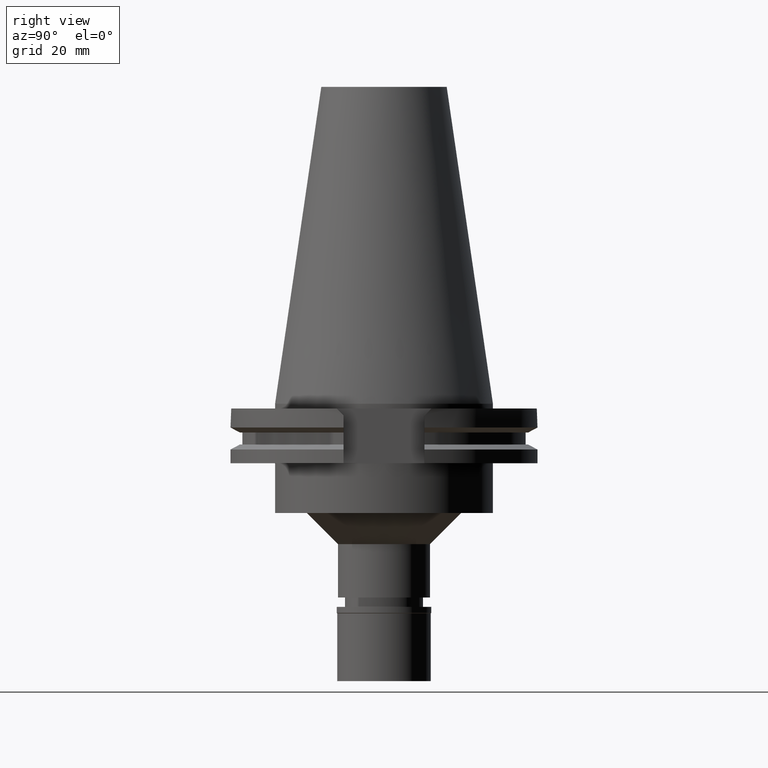
[diagram: clean part render]
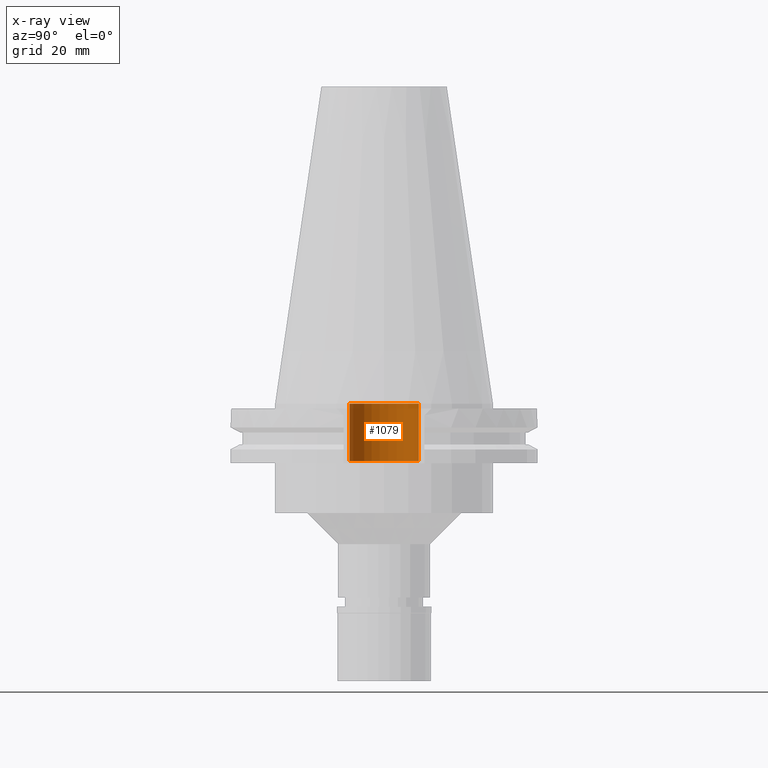
[diagram: x-ray — body ghosted, one internal face saturated and labeled with its STEP entity id]
A machine part, right view, then the same camera in x-ray: the body is ghosted and one INTERNAL B-rep face — a face not visible from any outside direction — is saturated and labeled: STEP entity #1079.
In plain terms, the highlighted cylindrical surface (edge-blend (fillet) strip) has radius 11.15 mm, axis along (0, 0, -1).
Its self-contained STEP definition (entity closure, byte-faithful):
#29 = VERTEX_POINT ( 'NONE', #1865 ) ;
#329 = DIRECTION ( 'NONE',  ( 0.0000000000000000000, -1.000000000000000000, 0.0000000000000000000 ) ) ;
#344 = CARTESIAN_POINT ( 'NONE',  ( 0.0000000000000000000, 2.579412320703999880E-14, 110.6250000000000000 ) ) ;
#450 = DIRECTION ( 'NONE',  ( 0.0000000000000000000, 0.0000000000000000000, -1.000000000000000000 ) ) ;
#465 = VECTOR ( 'NONE', #2115, 1000.000000000000000 ) ;
#633 = DIRECTION ( 'NONE',  ( 0.0000000000000000000, 0.0000000000000000000, 1.000000000000000000 ) ) ;
#781 = DIRECTION ( 'NONE',  ( 0.0000000000000000000, 0.0000000000000000000, -1.000000000000000000 ) ) ;
#841 = ORIENTED_EDGE ( 'NONE', *, *, #1780, .F. ) ;
#967 = CARTESIAN_POINT ( 'NONE',  ( 0.0000000000000000000, -11.15000000000000036, 0.0000000000000000000 ) ) ;
#995 = LINE ( 'NONE', #2012, #465 ) ;
#1067 = ORIENTED_EDGE ( 'NONE', *, *, #1193, .F. ) ;
#1079 = ADVANCED_FACE ( 'NONE', ( #1584 ), #2620, .F. ) ;
#1163 = CARTESIAN_POINT ( 'NONE',  ( 0.0000000000000000000, 11.15000000000000036, -18.39999999999999858 ) ) ;
#1193 = EDGE_CURVE ( 'NONE', #1861, #2417, #1376, .T. ) ;
#1231 = AXIS2_PLACEMENT_3D ( 'NONE', #2745, #450, #2493 ) ;
#1238 = ORIENTED_EDGE ( 'NONE', *, *, #2100, .T. ) ;
#1332 = CIRCLE ( 'NONE', #1231, 11.15000000000000036 ) ;
#1376 = CIRCLE ( 'NONE', #3252, 11.15000000000000036 ) ;
#1463 = CARTESIAN_POINT ( 'NONE',  ( 0.0000000000000000000, 11.15000000000000036, 0.0000000000000000000 ) ) ;
#1584 = FACE_OUTER_BOUND ( 'NONE', #1734, .T. ) ;
#1734 = EDGE_LOOP ( 'NONE', ( #1067, #841, #1842, #1238 ) ) ;
#1737 = LINE ( 'NONE', #2930, #2546 ) ;
#1780 = EDGE_CURVE ( 'NONE', #29, #1861, #1737, .T. ) ;
#1842 = ORIENTED_EDGE ( 'NONE', *, *, #3048, .T. ) ;
#1861 = VERTEX_POINT ( 'NONE', #967 ) ;
#1865 = CARTESIAN_POINT ( 'NONE',  ( 0.0000000000000000000, -11.15000000000000036, -18.39999999999999858 ) ) ;
#2012 = CARTESIAN_POINT ( 'NONE',  ( 0.0000000000000000000, 11.15000000000000036, -18.39999999999999858 ) ) ;
#2100 = EDGE_CURVE ( 'NONE', #2891, #2417, #995, .T. ) ;
#2115 = DIRECTION ( 'NONE',  ( 0.0000000000000000000, 0.0000000000000000000, 1.000000000000000000 ) ) ;
#2175 = AXIS2_PLACEMENT_3D ( 'NONE', #344, #781, #329 ) ;
#2417 = VERTEX_POINT ( 'NONE', #1463 ) ;
#2460 = DIRECTION ( 'NONE',  ( 0.0000000000000000000, -1.000000000000000000, 0.0000000000000000000 ) ) ;
#2474 = DIRECTION ( 'NONE',  ( 0.0000000000000000000, 0.0000000000000000000, -1.000000000000000000 ) ) ;
#2493 = DIRECTION ( 'NONE',  ( 0.0000000000000000000, -1.000000000000000000, 0.0000000000000000000 ) ) ;
#2546 = VECTOR ( 'NONE', #633, 1000.000000000000000 ) ;
#2620 = CYLINDRICAL_SURFACE ( 'NONE', #2175, 11.15000000000000036 ) ;
#2725 = CARTESIAN_POINT ( 'NONE',  ( 0.0000000000000000000, 2.579412320703999880E-14, 0.0000000000000000000 ) ) ;
#2745 = CARTESIAN_POINT ( 'NONE',  ( 0.0000000000000000000, 2.579412320703999880E-14, -18.39999999999999858 ) ) ;
#2891 = VERTEX_POINT ( 'NONE', #1163 ) ;
#2930 = CARTESIAN_POINT ( 'NONE',  ( 0.0000000000000000000, -11.15000000000000036, -18.39999999999999858 ) ) ;
#3048 = EDGE_CURVE ( 'NONE', #29, #2891, #1332, .T. ) ;
#3252 = AXIS2_PLACEMENT_3D ( 'NONE', #2725, #2474, #2460 ) ;